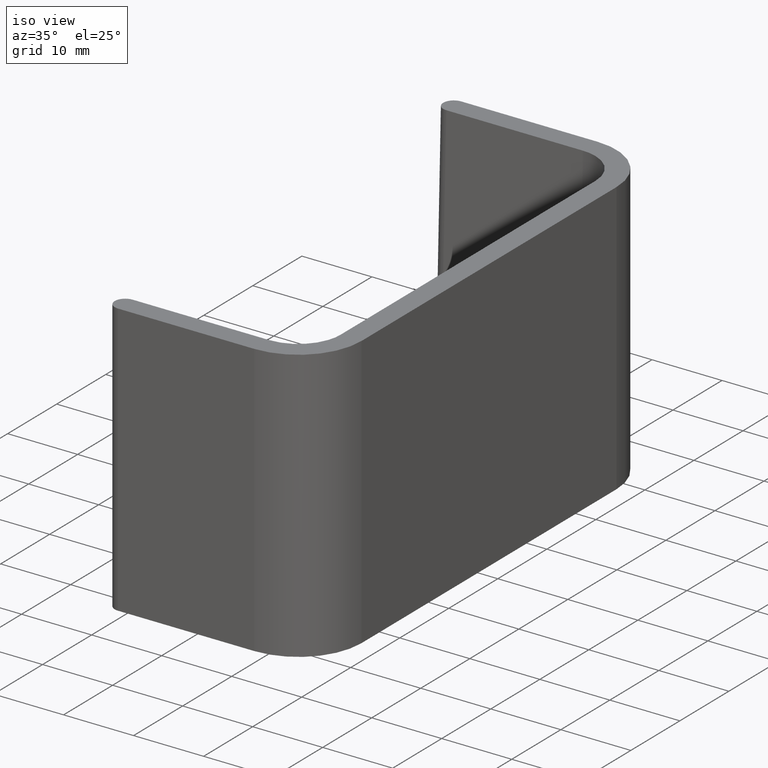
[diagram: clean part render]
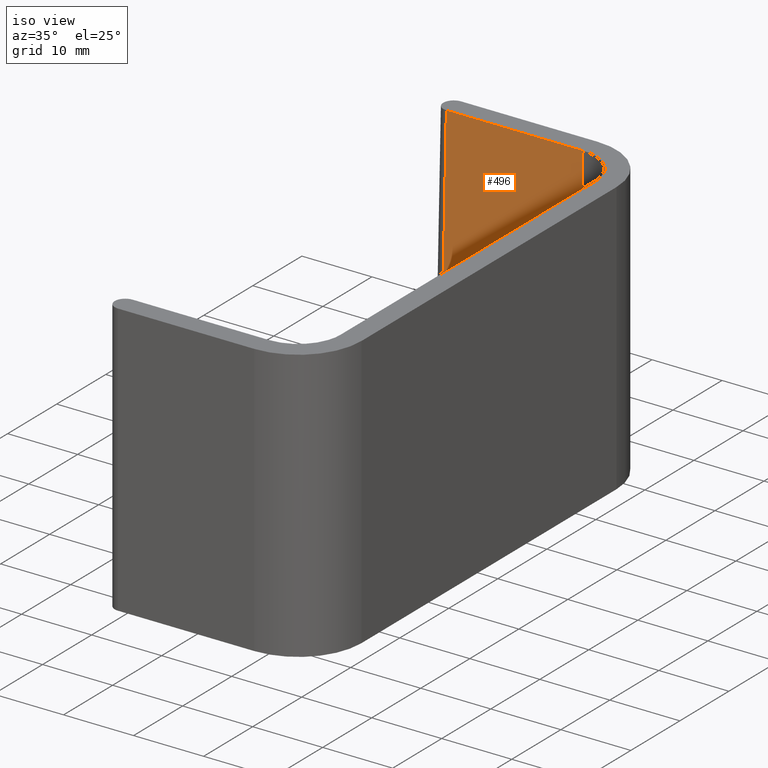
[diagram: same view with one face highlighted and labeled with its STEP entity id]
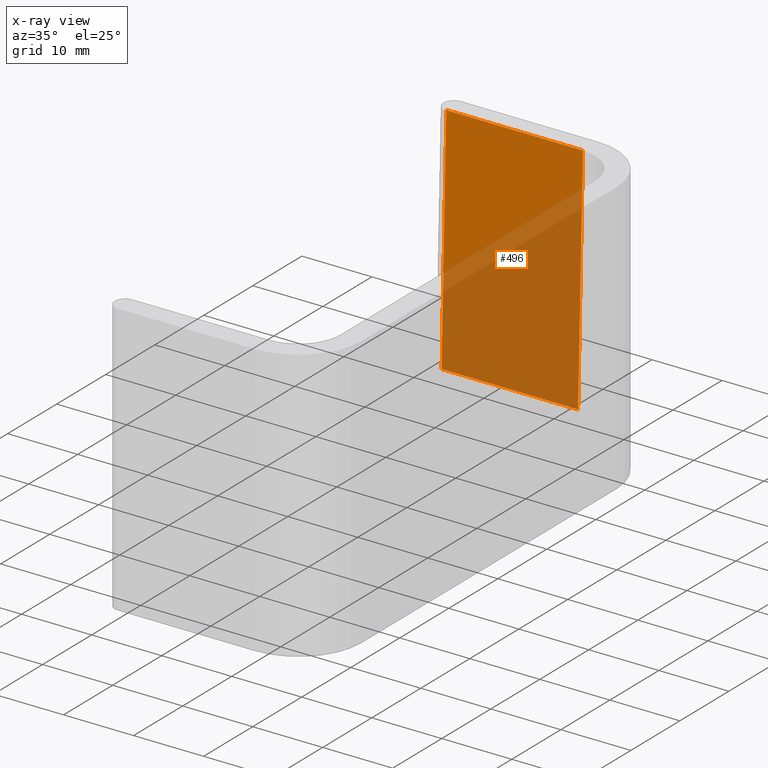
[diagram: x-ray of the same camera — body ghosted, the highlighted face saturated]
A machine part, iso view. The second image highlights one B-rep face of the part: STEP entity #496.
The next image is the same camera in x-ray: the body ghosted, the highlighted face saturated — about 61% of this face is hidden behind the body in this view.
In plain terms, the highlighted planar face has unit normal (0, 0.9996, -0.0297).
Its self-contained STEP definition (entity closure, byte-faithful):
#16=PLANE('',#548);
#31=LINE('',#925,#64);
#35=LINE('',#934,#68);
#38=LINE('',#940,#71);
#40=LINE('',#945,#73);
#64=VECTOR('',#637,19.5);
#68=VECTOR('',#647,33.0590499724358);
#71=VECTOR('',#654,33.0590499724358);
#73=VECTOR('',#660,19.5);
#136=FACE_OUTER_BOUND('',#173,.T.);
#173=EDGE_LOOP('',(#388,#389,#390,#391));
#231=VERTEX_POINT('',#869);
#236=VERTEX_POINT('',#908);
#240=VERTEX_POINT('',#932);
#241=VERTEX_POINT('',#939);
#288=EDGE_CURVE('',#231,#236,#31,.T.);
#293=EDGE_CURVE('',#240,#231,#35,.T.);
#296=EDGE_CURVE('',#236,#241,#38,.T.);
#299=EDGE_CURVE('',#241,#240,#40,.T.);
#388=ORIENTED_EDGE('',*,*,#288,.F.);
#389=ORIENTED_EDGE('',*,*,#293,.F.);
#390=ORIENTED_EDGE('',*,*,#299,.F.);
#391=ORIENTED_EDGE('',*,*,#296,.F.);
#496=ADVANCED_FACE('',(#136),#16,.F.);
#548=AXIS2_PLACEMENT_3D('',#944,#658,#659);
#637=DIRECTION('',(-1.,0.,0.));
#647=DIRECTION('',(0.,-0.0296662440851107,-0.999559860119384));
#654=DIRECTION('',(0.,0.0296662440851107,0.999559860119384));
#658=DIRECTION('center_axis',(0.,0.999559860119384,-0.0296662440851107));
#659=DIRECTION('ref_axis',(0.,0.0296662440851108,0.999559860119384));
#660=DIRECTION('',(1.,0.,0.));
#869=CARTESIAN_POINT('',(9.75000000000018,31.0192621542959,-13.5444993661277));
#908=CARTESIAN_POINT('',(-9.74999999999981,31.0192621542959,-13.5444993661277));
#925=CARTESIAN_POINT('',(-11.2499999999998,31.0192621542959,-13.5444993661277));
#932=CARTESIAN_POINT('',(9.75000000000018,32.0000000000001,19.5));
#934=CARTESIAN_POINT('',(9.75000000000018,31.2208780351292,-6.75135288403855));
#939=CARTESIAN_POINT('',(-9.74999999999981,32.0000000000001,19.5));
#940=CARTESIAN_POINT('',(-9.74999999999981,31.1995734453222,-7.46917927103737));
#944=CARTESIAN_POINT('Origin',(-11.2499999999998,30.9760639039527,-15.));
#945=CARTESIAN_POINT('',(-0.637677972542982,32.0000000000001,19.5));